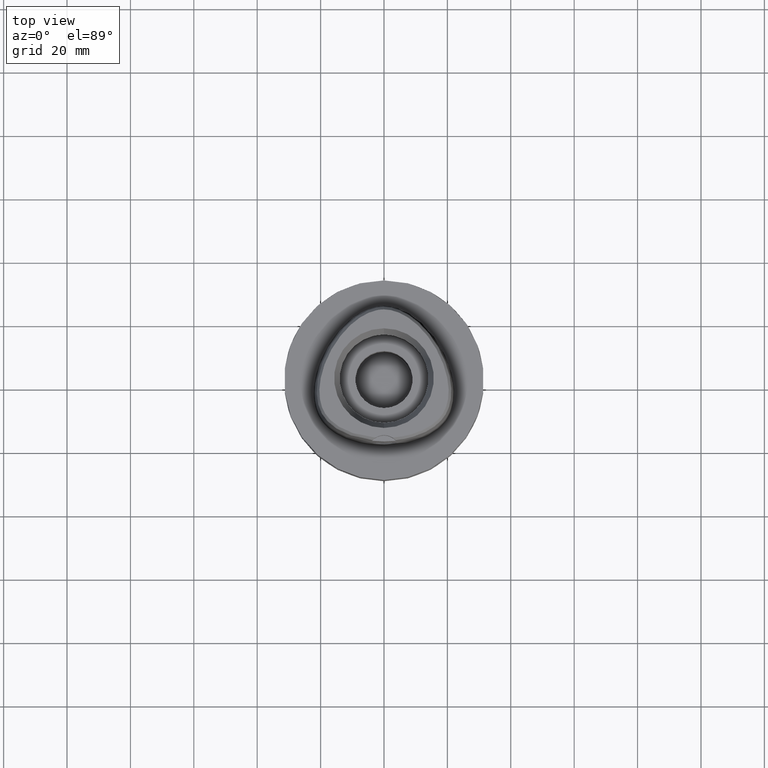
[diagram: clean part render]
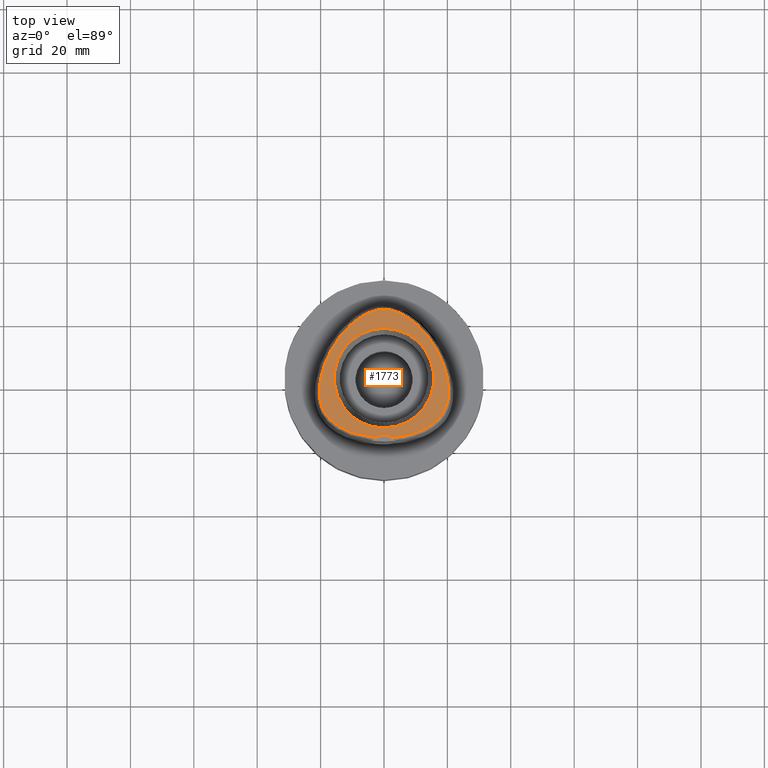
[diagram: same view with one face highlighted and labeled with its STEP entity id]
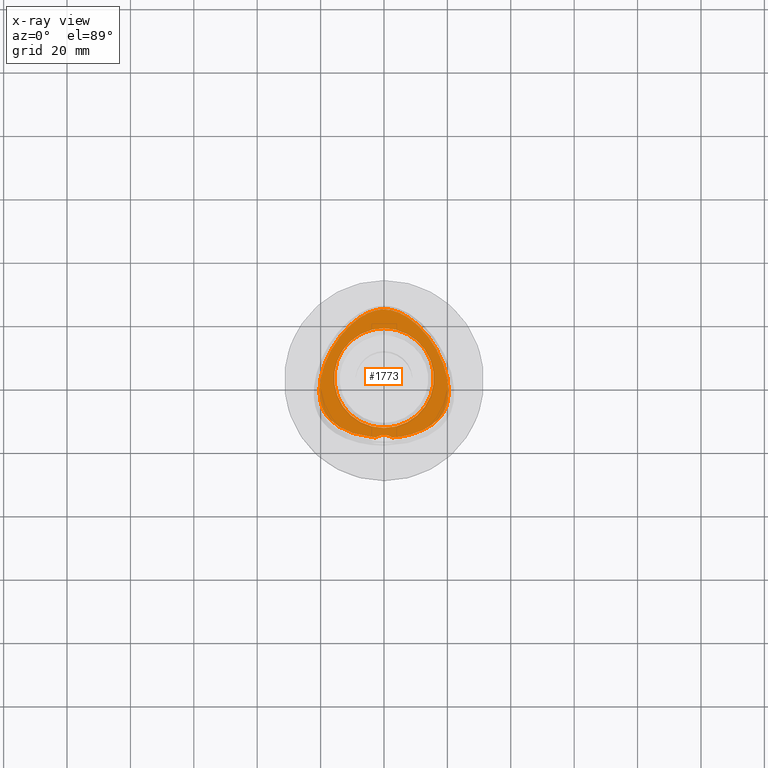
[diagram: x-ray of the same camera — body ghosted, the highlighted face saturated]
A machine part, top view. The second image highlights one B-rep face of the part: STEP entity #1773.
The next image is the same camera in x-ray: the body ghosted, the highlighted face saturated — about 0% of this face is hidden behind the body in this view.
In plain terms, the highlighted planar face has unit normal (0, 0, 1).
Its self-contained STEP definition (entity closure, byte-faithful):
#17=CARTESIAN_POINT('',(0.E0,-2.3E1,3.8E1));
#18=DIRECTION('',(0.E0,0.E0,1.E0));
#19=DIRECTION('',(5.364574965210E-1,8.439273395420E-1,0.E0));
#20=AXIS2_PLACEMENT_3D('',#17,#18,#19);
#26=CARTESIAN_POINT('',(0.E0,-2.3E1,3.8E1));
#27=DIRECTION('',(0.E0,0.E0,1.E0));
#28=DIRECTION('',(0.E0,1.E0,0.E0));
#29=AXIS2_PLACEMENT_3D('',#26,#27,#28);
#34=CARTESIAN_POINT('',(-2.682279906005E0,-1.878035848610E1,3.8E1));
#35=CARTESIAN_POINT('',(-3.615992387585E0,-1.870562816122E1,3.8E1));
#36=CARTESIAN_POINT('',(-5.407734020736E0,-1.848454679389E1,3.8E1));
#37=CARTESIAN_POINT('',(-7.932648959264E0,-1.795093832033E1,3.8E1));
#38=CARTESIAN_POINT('',(-1.011093067833E1,-1.728835518506E1,3.8E1));
#39=CARTESIAN_POINT('',(-1.200179374664E1,-1.653397028023E1,3.8E1));
#40=CARTESIAN_POINT('',(-1.369700345282E1,-1.567266467509E1,3.8E1));
#41=CARTESIAN_POINT('',(-1.513726519815E1,-1.475418725786E1,3.8E1));
#42=CARTESIAN_POINT('',(-1.633334533796E1,-1.381105385542E1,3.8E1));
#43=CARTESIAN_POINT('',(-1.732374928668E1,-1.284810745388E1,3.8E1));
#44=CARTESIAN_POINT('',(-1.813229935462E1,-1.187216424234E1,3.8E1));
#45=CARTESIAN_POINT('',(-1.878222636920E1,-1.088654229338E1,3.8E1));
#46=CARTESIAN_POINT('',(-1.931709235851E1,-9.837005786233E0,3.8E1));
#47=CARTESIAN_POINT('',(-1.976433416412E1,-8.655916858524E0,3.8E1));
#48=CARTESIAN_POINT('',(-2.010944186437E1,-7.328416515772E0,3.8E1));
#49=CARTESIAN_POINT('',(-2.033654136560E1,-5.830513147041E0,3.8E1));
#50=CARTESIAN_POINT('',(-2.042157835930E1,-4.136886134280E0,3.8E1));
#51=CARTESIAN_POINT('',(-2.033146003251E1,-2.248381625493E0,3.8E1));
#52=CARTESIAN_POINT('',(-2.005206076078E1,-2.432470319084E-1,3.8E1));
#53=CARTESIAN_POINT('',(-1.955034487051E1,1.966703639581E0,3.8E1));
#54=CARTESIAN_POINT('',(-1.876816953338E1,4.409074608698E0,3.8E1));
#55=CARTESIAN_POINT('',(-1.771616617751E1,6.923498653727E0,3.8E1));
#56=CARTESIAN_POINT('',(-1.641358949434E1,9.424228252852E0,3.8E1));
#57=CARTESIAN_POINT('',(-1.490824081939E1,1.180276828048E1,3.8E1));
#58=CARTESIAN_POINT('',(-1.325849354484E1,1.398169235661E1,3.8E1));
#59=CARTESIAN_POINT('',(-1.153689958162E1,1.588854831764E1,3.8E1));
#60=CARTESIAN_POINT('',(-9.868608381664E0,1.744225090536E1,3.8E1));
#61=CARTESIAN_POINT('',(-8.266536693780E0,1.869727375074E1,3.8E1));
#62=CARTESIAN_POINT('',(-6.688572305148E0,1.971877947820E1,3.8E1));
#63=CARTESIAN_POINT('',(-5.173796199863E0,2.050247465997E1,3.8E1));
#64=CARTESIAN_POINT('',(-3.761723227286E0,2.106156797436E1,3.8E1));
#65=CARTESIAN_POINT('',(-2.433890352010E0,2.143356865998E1,3.8E1));
#66=CARTESIAN_POINT('',(-1.190547011954E0,2.164239198394E1,3.8E1));
#67=CARTESIAN_POINT('',(-3.905150294297E-1,2.168728795389E1,3.8E1));
#68=CARTESIAN_POINT('',(-3.470944899540E-11,2.168728795390E1,3.8E1));
#73=CARTESIAN_POINT('',(-3.470944899540E-11,2.168728795390E1,3.8E1));
#74=CARTESIAN_POINT('',(3.899683879827E-1,2.168728795390E1,3.8E1));
#75=CARTESIAN_POINT('',(1.189035645985E0,2.164255624145E1,3.8E1));
#76=CARTESIAN_POINT('',(2.432226324098E0,2.143388316617E1,3.8E1));
#77=CARTESIAN_POINT('',(3.758477775763E0,2.106272187552E1,3.8E1));
#78=CARTESIAN_POINT('',(5.172853508806E0,2.050284320588E1,3.8E1));
#79=CARTESIAN_POINT('',(6.685202828046E0,1.972091322756E1,3.8E1));
#80=CARTESIAN_POINT('',(8.271171738504E0,1.869408115197E1,3.8E1));
#81=CARTESIAN_POINT('',(9.867953889425E0,1.744248960163E1,3.8E1));
#82=CARTESIAN_POINT('',(1.153394495187E1,1.589159131E1,3.8E1));
#83=CARTESIAN_POINT('',(1.325750464478E1,1.398301525042E1,3.8E1));
#84=CARTESIAN_POINT('',(1.490902552054E1,1.180185901647E1,3.8E1));
#85=CARTESIAN_POINT('',(1.641624340247E1,9.419603623310E0,3.8E1));
#86=CARTESIAN_POINT('',(1.771741796653E1,6.920919638238E0,3.8E1));
#87=CARTESIAN_POINT('',(1.877067262030E1,4.402356060489E0,3.8E1));
#88=CARTESIAN_POINT('',(1.955032621507E1,1.965778855829E0,3.8E1));
#89=CARTESIAN_POINT('',(2.005121045685E1,-2.385548677952E-1,3.8E1));
#90=CARTESIAN_POINT('',(2.033132751846E1,-2.247055184183E0,3.8E1));
#91=CARTESIAN_POINT('',(2.042150420313E1,-4.131631705048E0,3.8E1));
#92=CARTESIAN_POINT('',(2.033693777670E1,-5.826934226662E0,3.8E1));
#93=CARTESIAN_POINT('',(2.011018689396E1,-7.324877689488E0,3.8E1));
#94=CARTESIAN_POINT('',(1.976500328288E1,-8.653665562808E0,3.8E1));
#95=CARTESIAN_POINT('',(1.931897367351E1,-9.832747712823E0,3.8E1));
#96=CARTESIAN_POINT('',(1.878304303408E1,-1.088536365396E1,3.8E1));
#97=CARTESIAN_POINT('',(1.813293972883E1,-1.187119231057E1,3.8E1));
#98=CARTESIAN_POINT('',(1.732624056960E1,-1.284527473284E1,3.8E1));
#99=CARTESIAN_POINT('',(1.633759237836E1,-1.380734544674E1,3.8E1));
#100=CARTESIAN_POINT('',(1.514137977746E1,-1.475127887702E1,3.8E1));
#101=CARTESIAN_POINT('',(1.370207125341E1,-1.566979997183E1,3.8E1));
#102=CARTESIAN_POINT('',(1.200691768720E1,-1.653157239671E1,3.8E1));
#103=CARTESIAN_POINT('',(1.011981225303E1,-1.728530132302E1,3.8E1));
#104=CARTESIAN_POINT('',(7.935130777009E0,-1.795052425296E1,3.8E1));
#105=CARTESIAN_POINT('',(5.406412359761E0,-1.848479837413E1,3.8E1));
#106=CARTESIAN_POINT('',(3.615115772402E0,-1.870569258199E1,3.8E1));
#107=CARTESIAN_POINT('',(2.682287482607E0,-1.878036330229E1,3.8E1));
#112=CARTESIAN_POINT('',(0.E0,0.E0,3.8E1));
#113=DIRECTION('',(0.E0,0.E0,1.E0));
#114=DIRECTION('',(0.E0,1.E0,0.E0));
#115=AXIS2_PLACEMENT_3D('',#112,#113,#114);
#120=CARTESIAN_POINT('',(0.E0,0.E0,3.8E1));
#121=DIRECTION('',(0.E0,0.E0,1.E0));
#122=DIRECTION('',(0.E0,-1.E0,0.E0));
#123=AXIS2_PLACEMENT_3D('',#120,#121,#122);
#1566=CARTESIAN_POINT('',(0.E0,-1.8E1,3.8E1));
#1567=CARTESIAN_POINT('',(-2.682279906007E0,-1.878035848610E1,3.8E1));
#1568=VERTEX_POINT('',#1566);
#1569=VERTEX_POINT('',#1567);
#1570=CARTESIAN_POINT('',(2.682287482605E0,-1.878036330229E1,3.8E1));
#1571=VERTEX_POINT('',#1570);
#1572=VERTEX_POINT('',#68);
#1573=CARTESIAN_POINT('',(0.E0,1.571487483156E1,3.8E1));
#1574=CARTESIAN_POINT('',(0.E0,-1.571487483156E1,3.8E1));
#1575=VERTEX_POINT('',#1573);
#1576=VERTEX_POINT('',#1574);
#1752=CARTESIAN_POINT('',(0.E0,0.E0,3.8E1));
#1753=DIRECTION('',(0.E0,0.E0,1.E0));
#1754=DIRECTION('',(0.E0,1.E0,0.E0));
#1755=AXIS2_PLACEMENT_3D('',#1752,#1753,#1754);
#1756=PLANE('',#1755);
#1758=ORIENTED_EDGE('',*,*,#1757,.T.);
#1760=ORIENTED_EDGE('',*,*,#1759,.T.);
#1762=ORIENTED_EDGE('',*,*,#1761,.T.);
#1764=ORIENTED_EDGE('',*,*,#1763,.T.);
#1765=EDGE_LOOP('',(#1758,#1760,#1762,#1764));
#1766=FACE_OUTER_BOUND('',#1765,.F.);
#1768=ORIENTED_EDGE('',*,*,#1767,.T.);
#1770=ORIENTED_EDGE('',*,*,#1769,.T.);
#1771=EDGE_LOOP('',(#1768,#1770));
#1772=FACE_BOUND('',#1771,.F.);
#21=CIRCLE('',#20,5.E0);
#30=CIRCLE('',#29,5.E0);
#69=B_SPLINE_CURVE_WITH_KNOTS('',3,(#34,#35,#36,#37,#38,#39,#40,#41,#42,#43,#44,
#45,#46,#47,#48,#49,#50,#51,#52,#53,#54,#55,#56,#57,#58,#59,#60,#61,#62,#63,#64,
#65,#66,#67,#68),.UNSPECIFIED.,.F.,.F.,(4,1,1,1,1,1,1,1,1,1,1,1,1,1,1,1,1,1,1,1,
1,1,1,1,1,1,1,1,1,1,1,1,4),(0.E0,3.125E-2,6.25E-2,9.375E-2,1.25E-1,1.5625E-1,
1.875E-1,2.1875E-1,2.5E-1,2.8125E-1,3.125E-1,3.4375E-1,3.75E-1,4.0625E-1,
4.375E-1,4.6875E-1,5.E-1,5.3125E-1,5.625E-1,5.9375E-1,6.25E-1,6.5625E-1,
6.875E-1,7.1875E-1,7.5E-1,7.8125E-1,8.125E-1,8.4375E-1,8.75E-1,9.0625E-1,
9.375E-1,9.6875E-1,1.E0),.UNSPECIFIED.);
#108=B_SPLINE_CURVE_WITH_KNOTS('',3,(#73,#74,#75,#76,#77,#78,#79,#80,#81,#82,
#83,#84,#85,#86,#87,#88,#89,#90,#91,#92,#93,#94,#95,#96,#97,#98,#99,#100,#101,
#102,#103,#104,#105,#106,#107),.UNSPECIFIED.,.F.,.F.,(4,1,1,1,1,1,1,1,1,1,1,1,1,
1,1,1,1,1,1,1,1,1,1,1,1,1,1,1,1,1,1,1,4),(0.E0,3.125E-2,6.25E-2,9.375E-2,
1.25E-1,1.5625E-1,1.875E-1,2.1875E-1,2.5E-1,2.8125E-1,3.125E-1,3.4375E-1,
3.75E-1,4.0625E-1,4.375E-1,4.6875E-1,5.E-1,5.3125E-1,5.625E-1,5.9375E-1,6.25E-1,
6.5625E-1,6.875E-1,7.1875E-1,7.5E-1,7.8125E-1,8.125E-1,8.4375E-1,8.75E-1,
9.0625E-1,9.375E-1,9.6875E-1,1.E0),.UNSPECIFIED.);
#116=CIRCLE('',#115,1.571487483156E1);
#124=CIRCLE('',#123,1.571487483156E1);
#1757=EDGE_CURVE('',#1571,#1568,#21,.T.);
#1759=EDGE_CURVE('',#1568,#1569,#30,.T.);
#1761=EDGE_CURVE('',#1569,#1572,#69,.T.);
#1763=EDGE_CURVE('',#1572,#1571,#108,.T.);
#1767=EDGE_CURVE('',#1575,#1576,#116,.T.);
#1769=EDGE_CURVE('',#1576,#1575,#124,.T.);
#1773=ADVANCED_FACE('',(#1766,#1772),#1756,.T.);